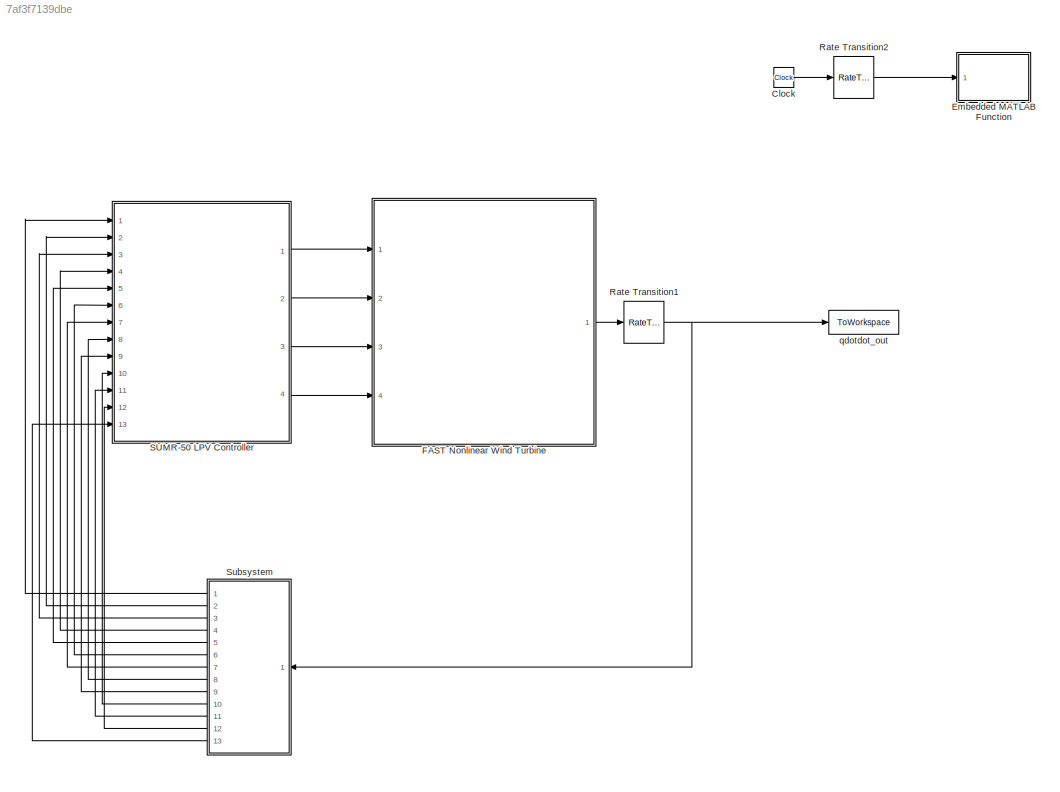
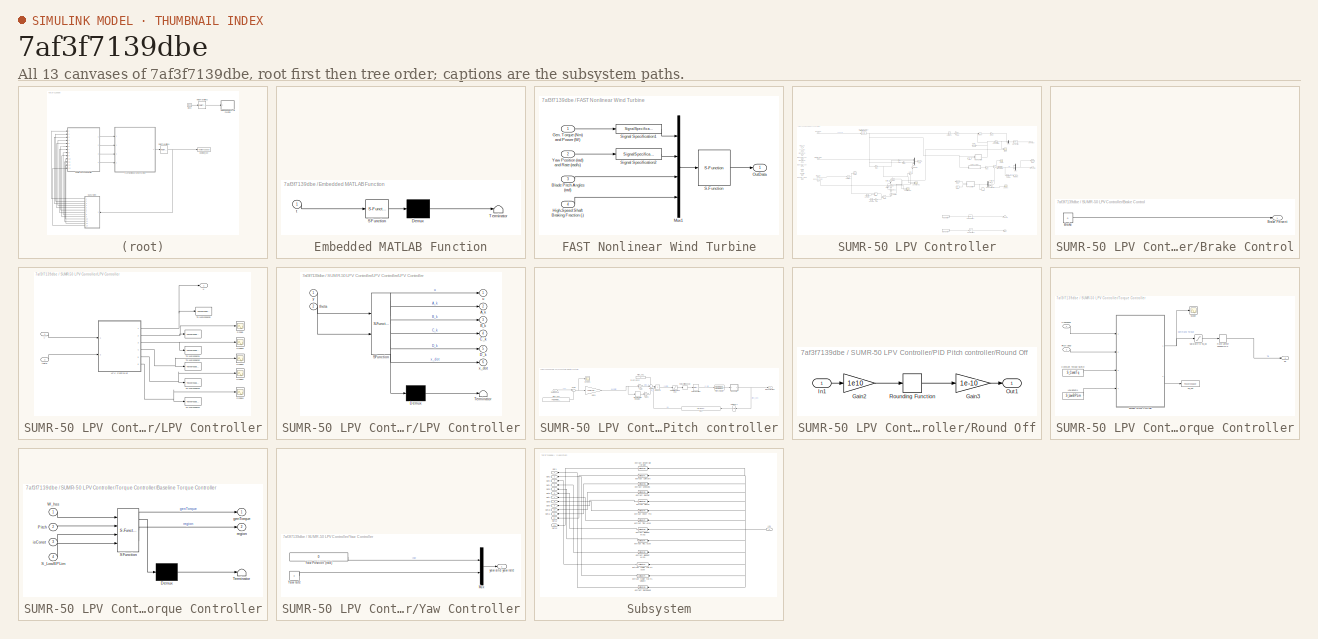
[diagram: thumbnail index - all 13 canvases of the model, root first then tree order]
MODEL slx_7af3f7139dbe
KIND model
CONFIG AbsTol = auto
CONFIG EnableMultiTasking = on
CONFIG FixedStep = .0125
CONFIG MaxStep = auto
CONFIG MinStep = auto
CONFIG RelTol = 1e-3
CONFIG SampleTimeConstraint = Unconstrained
CONFIG Solver = ode4
CONFIG SolverName = ode4
CONFIG StartTime = 0.0
CONFIG StopTime = TMax
BLOCK [Clock] Clock
BLOCK [SubSystem] Embedded MATLAB Function
  ErrorFcn = Stateflow.Translate.translate
  PermitHierarchicalResolution = ExplicitOnly
  Ports = [1]
  RequestExecContextInheritance = off
  SFBlockType = MATLAB Function
  TreatAsAtomicUnit = on
BLOCK [Demux] Embedded MATLAB Function/ Demux 
  Outputs = 1
  Ports = [1, 1]
BLOCK [S-Function] Embedded MATLAB Function/ SFunction 
  EnableBusSupport = on
  FunctionName = sf_sfun
  PortCounts = [1 1]
  Ports = [1, 1]
  SFcnIsStateOwnerBlock = off
  SFunctionDeploymentMode = off
  Tag = Stateflow S-Function LPVT_CollectivePitch_50 2
BLOCK [Terminator] Embedded MATLAB Function/ Terminator 
BLOCK [Inport] Embedded MATLAB Function/t
  IconDisplay = Port number
BLOCK [SubSystem] FAST Nonlinear Wind Turbine
  Ports = [4, 1]
  RequestExecContextInheritance = off
BLOCK [Inport] FAST Nonlinear Wind Turbine/Blade Pitch Angles (rad)
  IconDisplay = Port number
  Port = 3
BLOCK [Inport] FAST Nonlinear Wind Turbine/Gen. Torque (Nm) and Power (W)
  IconDisplay = Port number
BLOCK [Inport] FAST Nonlinear Wind Turbine/High-Speed Shaft Braking Fraction (-)
  IconDisplay = Port number
  Port = 4
BLOCK [Mux] FAST Nonlinear Wind Turbine/Mux1
  DisplayOption = bar
  Ports = [4, 1]
BLOCK [Outport] FAST Nonlinear Wind Turbine/OutData
  IconDisplay = Port number
BLOCK [S-Function] FAST Nonlinear Wind Turbine/S-Function
  EnableBusSupport = off
  FunctionName = FAST_SFunc
  Parameters = FAST_InputFileName, FA.TMax, 0
  Ports = [1, 1]
  SFcnIsStateOwnerBlock = off
  SFunctionDeploymentMode = off
BLOCK [SignalSpecification] FAST Nonlinear Wind Turbine/Signal Specification1
  Dimensions = 2
  OutDataTypeStr = double
  SignalType = real
BLOCK [SignalSpecification] FAST Nonlinear Wind Turbine/Signal Specification2
  Dimensions = 2
  OutDataTypeStr = double
  SignalType = real
BLOCK [Inport] FAST Nonlinear Wind Turbine/Yaw Position (rad) and Rate (rad//s)
  IconDisplay = Port number
  Port = 2
BLOCK [RateTransition] Rate Transition1
BLOCK [RateTransition] Rate Transition2
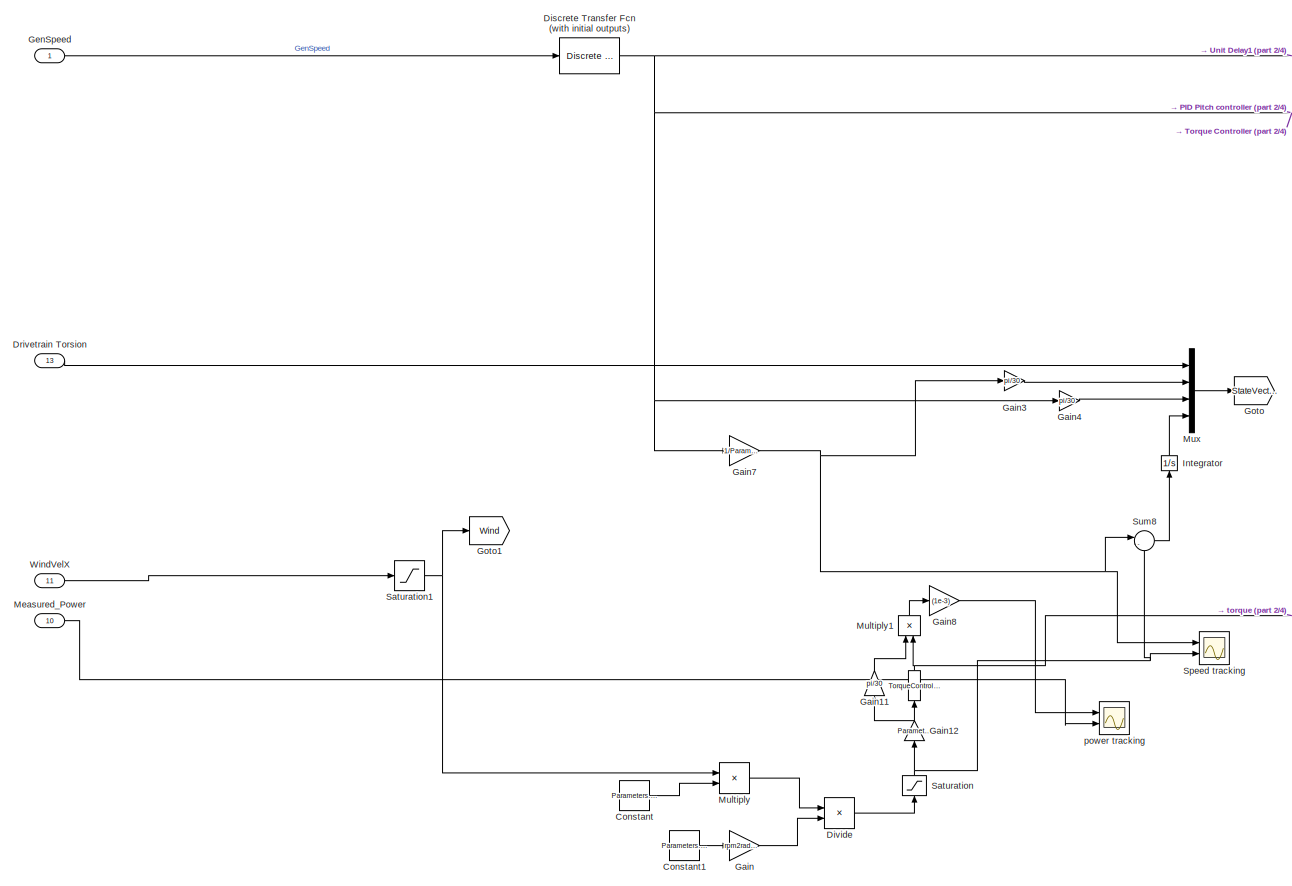
[diagram: SUMR-50 LPV Controller - part 1/4, middle left region]
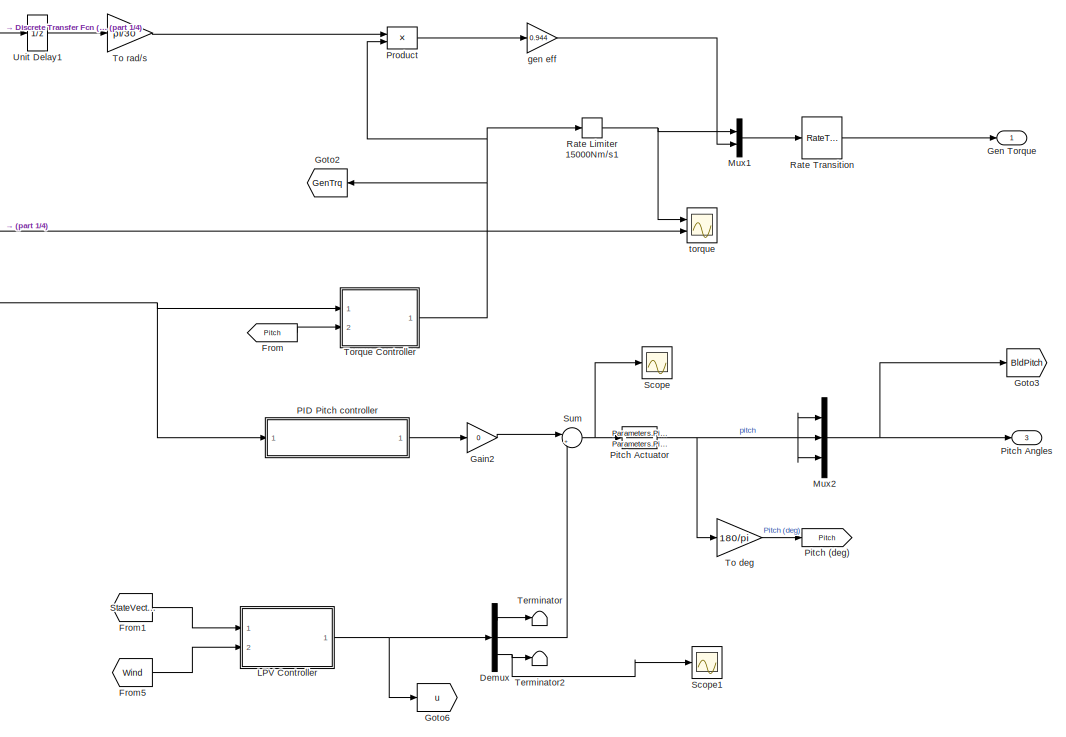
[diagram: SUMR-50 LPV Controller - part 2/4, top right region]
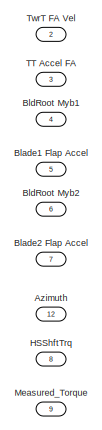
[diagram: SUMR-50 LPV Controller - part 3/4, middle left region]
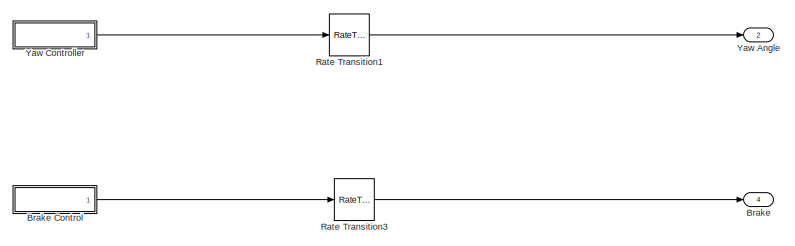
[diagram: SUMR-50 LPV Controller - part 4/4, bottom right region]
BLOCK [SubSystem] SUMR-50 LPV Controller
  Ports = [13, 4]
  RequestExecContextInheritance = off
BLOCK [Fcn] SUMR-50 LPV Controller/ 
  Expr = TorqueControlParams.k_opt*(u)^2
BLOCK [Inport] SUMR-50 LPV Controller/Azimuth
  IconDisplay = Port number
  Port = 12
BLOCK [Inport] SUMR-50 LPV Controller/Blade1 Flap Accel
  IconDisplay = Port number
  Port = 5
BLOCK [Inport] SUMR-50 LPV Controller/Blade2 Flap Accel
  IconDisplay = Port number
  Port = 7
BLOCK [Inport] SUMR-50 LPV Controller/BldRoot Myb1
  IconDisplay = Port number
  Port = 4
BLOCK [Inport] SUMR-50 LPV Controller/BldRoot Myb2
  IconDisplay = Port number
  Port = 6
BLOCK [Outport] SUMR-50 LPV Controller/Brake
  IconDisplay = Port number
  Port = 4
BLOCK [SubSystem] SUMR-50 LPV Controller/Brake Control
  Ports = [0, 1]
  RequestExecContextInheritance = off
BLOCK [Constant] SUMR-50 LPV Controller/Brake Control/Brake
  SampleTime = -1
  Value = 0
BLOCK [Outport] SUMR-50 LPV Controller/Brake Control/Brake Percent
  IconDisplay = Port number
BLOCK [Constant] SUMR-50 LPV Controller/Constant
  SampleTime = FA.DT
  Value = Parameters.Turbine.la_max
BLOCK [Constant] SUMR-50 LPV Controller/Constant1
  Value = Parameters.Turbine.R
BLOCK [Demux] SUMR-50 LPV Controller/Demux
  DisplayOption = bar
  Outputs = 3
  Ports = [1, 3]
BLOCK [Reference] SUMR-50 LPV Controller/Discrete Transfer Fcn (with initial outputs)  REF=simulink_extras/Additional
Discrete/Discrete
Transfer Fcn
(with initial outputs)
  Ports = [1, 1]
  SourceBlock = simulink_extras/Additional\nDiscrete/Discrete\nTransfer Fcn\n(with initial outputs)
  SourceProductBaseCode = SL
  SourceProductName = Simulink
  SourceType = Discrete Transfer Function with Initial Outputs
BLOCK [Product] SUMR-50 LPV Controller/Divide
  InputSameDT = off
  Inputs = */
  OutDataTypeStr = Inherit: Inherit via internal rule
  Ports = [2, 1]
  RndMeth = Floor
  SaturateOnIntegerOverflow = off
BLOCK [Inport] SUMR-50 LPV Controller/Drivetrain Torsion
  IconDisplay = Port number
  Port = 13
BLOCK [From] SUMR-50 LPV Controller/From
  GotoTag = Pitch
BLOCK [From] SUMR-50 LPV Controller/From1
  GotoTag = StateVector
BLOCK [From] SUMR-50 LPV Controller/From5
  GotoTag = Wind
BLOCK [Gain] SUMR-50 LPV Controller/Gain
  Gain = rpm2radps(1)
  OutDataTypeStr = Inherit: Inherit via internal rule
  ParamDataTypeStr = Inherit: Inherit via internal rule
  SaturateOnIntegerOverflow = off
BLOCK [Gain] SUMR-50 LPV Controller/Gain11
  Gain = pi/30
  OutDataTypeStr = Inherit: Inherit via internal rule
  ParamDataTypeStr = Inherit: Inherit via internal rule
  SaturateOnIntegerOverflow = off
BLOCK [Gain] SUMR-50 LPV Controller/Gain12
  Gain = Parameters.Turbine.G
  OutDataTypeStr = Inherit: Inherit via internal rule
  ParamDataTypeStr = Inherit: Inherit via internal rule
  SaturateOnIntegerOverflow = off
BLOCK [Gain] SUMR-50 LPV Controller/Gain2
  Gain = 0
  OutDataTypeStr = Inherit: Inherit via internal rule
  ParamDataTypeStr = Inherit: Inherit via internal rule
  SaturateOnIntegerOverflow = off
BLOCK [Gain] SUMR-50 LPV Controller/Gain3
  Gain = pi/30
  OutDataTypeStr = Inherit: Inherit via internal rule
  ParamDataTypeStr = Inherit: Inherit via internal rule
  SaturateOnIntegerOverflow = off
BLOCK [Gain] SUMR-50 LPV Controller/Gain4
  Gain = pi/30
  OutDataTypeStr = Inherit: Inherit via internal rule
  ParamDataTypeStr = Inherit: Inherit via internal rule
  SaturateOnIntegerOverflow = off
BLOCK [Gain] SUMR-50 LPV Controller/Gain7
  Gain = 1/Parameters.Turbine.G
  OutDataTypeStr = Inherit: Inherit via internal rule
  ParamDataTypeStr = Inherit: Inherit via internal rule
  SaturateOnIntegerOverflow = off
BLOCK [Gain] SUMR-50 LPV Controller/Gain8
  Gain = (1e-3)
  OutDataTypeStr = Inherit: Inherit via internal rule
  ParamDataTypeStr = Inherit: Inherit via internal rule
  SaturateOnIntegerOverflow = off
BLOCK [Outport] SUMR-50 LPV Controller/Gen Torque
  IconDisplay = Port number
BLOCK [Inport] SUMR-50 LPV Controller/GenSpeed
  IconDisplay = Port number
BLOCK [Goto] SUMR-50 LPV Controller/Goto
  GotoTag = StateVector
BLOCK [Goto] SUMR-50 LPV Controller/Goto1
  GotoTag = Wind
BLOCK [Goto] SUMR-50 LPV Controller/Goto2
  GotoTag = GenTrq
BLOCK [Goto] SUMR-50 LPV Controller/Goto3
  GotoTag = BldPitch
BLOCK [Goto] SUMR-50 LPV Controller/Goto6
  GotoTag = u
BLOCK [Inport] SUMR-50 LPV Controller/HSShftTrq
  IconDisplay = Port number
  Port = 8
BLOCK [Integrator] SUMR-50 LPV Controller/Integrator
  Ports = [1, 1]
BLOCK [SubSystem] SUMR-50 LPV Controller/LPV Controller
  MinAlgLoopOccurrences = on
  Ports = [2, 1]
  RequestExecContextInheritance = off
  TreatAsAtomicUnit = on
  TreatAsGroupedWhenPropagatingVariantConditions = off
BLOCK [ToWorkspace] SUMR-50 LPV Controller/LPV Controller/ 
  Decimation = 3
  FixptAsFi = on
  MaxDataPoints = inf
  Ports = [1]
  SampleTime = -1
  Save2DSignal = 3-D array (concatenate along third dimension)
  SaveFormat = Structure With Time
  VariableName = A_k
BLOCK [SubSystem] SUMR-50 LPV Controller/LPV Controller/LPV Controller
  ErrorFcn = Stateflow.Translate.translate
  MinAlgLoopOccurrences = on
  PermitHierarchicalResolution = ExplicitOnly
  Ports = [2, 6]
  RequestExecContextInheritance = off
  SFBlockType = MATLAB Function
  SystemSampleTime = FA.DT
  TreatAsAtomicUnit = on
  TreatAsGroupedWhenPropagatingVariantConditions = off
BLOCK [Demux] SUMR-50 LPV Controller/LPV Controller/LPV Controller/ Demux 
  Outputs = 1
  Ports = [1, 1]
BLOCK [S-Function] SUMR-50 LPV Controller/LPV Controller/LPV Controller/ SFunction 
  EnableBusSupport = on
  FunctionName = sf_sfun
  PortCounts = [2 7]
  Ports = [2, 7]
  SFcnIsStateOwnerBlock = off
  SFunctionDeploymentMode = off
  Tag = Stateflow S-Function LPVT_CollectivePitch_50 1
BLOCK [Terminator] SUMR-50 LPV Controller/LPV Controller/LPV Controller/ Terminator 
BLOCK [Outport] SUMR-50 LPV Controller/LPV Controller/LPV Controller/A_k
  IconDisplay = Port number
  Port = 2
BLOCK [Outport] SUMR-50 LPV Controller/LPV Controller/LPV Controller/B_k
  IconDisplay = Port number
  Port = 3
BLOCK [Outport] SUMR-50 LPV Controller/LPV Controller/LPV Controller/C_k
  IconDisplay = Port number
  Port = 4
BLOCK [Outport] SUMR-50 LPV Controller/LPV Controller/LPV Controller/D_k
  IconDisplay = Port number
  Port = 5
BLOCK [Inport] SUMR-50 LPV Controller/LPV Controller/LPV Controller/theta
  IconDisplay = Port number
  Port = 2
BLOCK [Outport] SUMR-50 LPV Controller/LPV Controller/LPV Controller/u
  IconDisplay = Port number
BLOCK [Outport] SUMR-50 LPV Controller/LPV Controller/LPV Controller/x_dot
  IconDisplay = Port number
  Port = 6
BLOCK [Inport] SUMR-50 LPV Controller/LPV Controller/LPV Controller/y
  IconDisplay = Port number
BLOCK [Scope] SUMR-50 LPV Controller/LPV Controller/Scope
  Floating = off
  NumInputPorts = 1
  Ports = [1]
  ScopeSpecificationString = Simulink.scopes.TimeScopeBlockCfg('CurrentConfiguration', extmgr.ConfigurationSet(extmgr.Configuration('Core','General UI',true),extmgr.Configuration('Core','Source UI',true),extmgr.Configuration('Sources','WiredSimulink',true,'DataLoggingVariableName','ScopeData2'),extmgr.Configuration('Visuals','Time Domain',true,'SerializedDisplays',{struct('MinYLimReal','-0.00017','MaxYLimReal','0.00161','YLab...<+1505ch>
BLOCK [Scope] SUMR-50 LPV Controller/LPV Controller/Scope1
  Floating = off
  NumInputPorts = 1
  Ports = [1]
  ScopeSpecificationString = Simulink.scopes.TimeScopeBlockCfg('CurrentConfiguration', extmgr.ConfigurationSet(extmgr.Configuration('Core','General UI',true),extmgr.Configuration('Core','Source UI',true),extmgr.Configuration('Sources','WiredSimulink',true,'DataLoggingVariableName','ScopeData3'),extmgr.Configuration('Visuals','Time Domain',true,'SerializedDisplays',{struct('MinYLimReal','-0.00334','MaxYLimReal','0.0016','YLabe...<+3162ch>
BLOCK [Scope] SUMR-50 LPV Controller/LPV Controller/Scope2
  Floating = off
  NumInputPorts = 1
  Ports = [1]
  ScopeSpecificationString = Simulink.scopes.TimeScopeBlockCfg('CurrentConfiguration', extmgr.ConfigurationSet(extmgr.Configuration('Core','General UI',true),extmgr.Configuration('Core','Source UI',true),extmgr.Configuration('Sources','WiredSimulink',true,'DataLoggingVariableName','ScopeData4'),extmgr.Configuration('Visuals','Time Domain',true,'SerializedDisplays',{struct('MinYLimReal','-0.00978','MaxYLimReal','0.08806','YLab...<+1531ch>
BLOCK [Scope] SUMR-50 LPV Controller/LPV Controller/Scope3
  Floating = off
  NumInputPorts = 1
  Ports = [1]
  ScopeSpecificationString = Simulink.scopes.TimeScopeBlockCfg('CurrentConfiguration', extmgr.ConfigurationSet(extmgr.Configuration('Core','General UI',true),extmgr.Configuration('Core','Source UI',true),extmgr.Configuration('Sources','WiredSimulink',true,'DataLoggingVariableName','ScopeData5'),extmgr.Configuration('Visuals','Time Domain',true,'SerializedDisplays',{struct('MinYLimReal','-1.43606','MaxYLimReal','2.6978','YLabe...<+1573ch>
BLOCK [Scope] SUMR-50 LPV Controller/LPV Controller/Scope4
  Floating = off
  NumInputPorts = 1
  Ports = [1]
  ScopeSpecificationString = Simulink.scopes.TimeScopeBlockCfg('CurrentConfiguration', extmgr.ConfigurationSet(extmgr.Configuration('Core','General UI',true),extmgr.Configuration('Core','Source UI',true),extmgr.Configuration('Sources','WiredSimulink',true,'DataLoggingVariableName','ScopeData4'),extmgr.Configuration('Visuals','Time Domain',true,'SerializedDisplays',{struct('MinYLimReal','-35.58775','MaxYLimReal','312.5564','YL...<+1449ch>
BLOCK [ToWorkspace] SUMR-50 LPV Controller/LPV Controller/To Workspace1
  Decimation = 3
  FixptAsFi = on
  MaxDataPoints = inf
  Ports = [1]
  SampleTime = -1
  Save2DSignal = 3-D array (concatenate along third dimension)
  SaveFormat = Structure With Time
  VariableName = B_k
BLOCK [ToWorkspace] SUMR-50 LPV Controller/LPV Controller/To Workspace2
  Decimation = 3
  FixptAsFi = on
  MaxDataPoints = inf
  Ports = [1]
  SampleTime = -1
  Save2DSignal = 3-D array (concatenate along third dimension)
  SaveFormat = Structure With Time
  VariableName = C_k
BLOCK [ToWorkspace] SUMR-50 LPV Controller/LPV Controller/To Workspace3
  Decimation = 3
  FixptAsFi = on
  MaxDataPoints = inf
  Ports = [1]
  SampleTime = -1
  Save2DSignal = 3-D array (concatenate along third dimension)
  SaveFormat = Structure With Time
  VariableName = D_k
BLOCK [ToWorkspace] SUMR-50 LPV Controller/LPV Controller/To Workspace4
  Decimation = 3
  FixptAsFi = on
  MaxDataPoints = inf
  Ports = [1]
  SampleTime = -1
  Save2DSignal = 3-D array (concatenate along third dimension)
  SaveFormat = Structure With Time
  VariableName = x_k1
BLOCK [ToWorkspace] SUMR-50 LPV Controller/LPV Controller/To Workspace5
  Decimation = 3
  FixptAsFi = on
  MaxDataPoints = inf
  Ports = [1]
  SampleTime = -1
  Save2DSignal = 3-D array (concatenate along third dimension)
  SaveFormat = Structure With Time
  VariableName = u
BLOCK [Inport] SUMR-50 LPV Controller/LPV Controller/theta
  IconDisplay = Port number
  Port = 2
BLOCK [Outport] SUMR-50 LPV Controller/LPV Controller/u
  IconDisplay = Port number
BLOCK [Inport] SUMR-50 LPV Controller/LPV Controller/y
  IconDisplay = Port number
BLOCK [Inport] SUMR-50 LPV Controller/Measured_Power
  IconDisplay = Port number
  Port = 10
BLOCK [Inport] SUMR-50 LPV Controller/Measured_Torque
  IconDisplay = Port number
  Port = 9
BLOCK [Product] SUMR-50 LPV Controller/Multiply
  InputSameDT = off
  OutDataTypeStr = Inherit: Inherit via internal rule
  Ports = [2, 1]
  RndMeth = Floor
  SaturateOnIntegerOverflow = off
BLOCK [Product] SUMR-50 LPV Controller/Multiply1
  InputSameDT = off
  OutDataTypeStr = Inherit: Inherit via internal rule
  Ports = [2, 1]
  RndMeth = Floor
  SaturateOnIntegerOverflow = off
BLOCK [Mux] SUMR-50 LPV Controller/Mux
  DisplayOption = bar
  Ports = [4, 1]
BLOCK [Mux] SUMR-50 LPV Controller/Mux1
  DisplayOption = bar
  Inputs = 2
  Ports = [2, 1]
BLOCK [Mux] SUMR-50 LPV Controller/Mux2
  DisplayOption = bar
  Inputs = 3
  Ports = [3, 1]
BLOCK [SubSystem] SUMR-50 LPV Controller/PID Pitch controller
  MinAlgLoopOccurrences = on
  Ports = [1, 1]
  RequestExecContextInheritance = off
BLOCK [Outport] SUMR-50 LPV Controller/PID Pitch controller/Blade Pitch (rad)
  IconDisplay = Port number
BLOCK [DiscreteIntegrator] SUMR-50 LPV Controller/PID Pitch controller/Discrete-Time Integrator
  ICPrevOutput = DiscIntNeverNeededParam
  ICPrevScaledInput = DiscIntNeverNeededParam
  InitialCondition = deg2rad(Parameters.Turbine.fine_pitch)/(PitchControlParams.Ki_0)/(1./(1.+deg2rad(Parameters.Turbine.fine_pitch)/PitchControlParams.theta_k))
  IntegratorMethod = Integration: Backward Euler
  LimitOutput = on
  LowerSaturationLimit = deg2rad(Parameters.Turbine.fine_pitch)/(PitchControlParams.Ki_0)/(1./(1.+deg2rad(Parameters.Turbine.fine_pitch)/PitchControlParams.theta_k))
  Ports = [1, 1]
  SampleTime = Control.DT
  UpperSaturationLimit = 5*1.570796/(PitchControlParams.Ki_0)/(1./(1.+1.570796/PitchControlParams.theta_k))
  gainval = 1
BLOCK [Fcn] SUMR-50 LPV Controller/PID Pitch controller/GK1
  Expr = 1./(1.+(u*180/pi-Parameters.Turbine.fine_pitch)/Parameters.Turbine.theta_k)
BLOCK [Gain] SUMR-50 LPV Controller/PID Pitch controller/Gain
  Gain = PitchControlParams.Kp_0
  OutDataTypeStr = Inherit: Inherit via internal rule
  ParamDataTypeStr = Inherit: Inherit via internal rule
  SaturateOnIntegerOverflow = off
BLOCK [Gain] SUMR-50 LPV Controller/PID Pitch controller/Gain1
  Gain = PitchControlParams.Ki_0
  OutDataTypeStr = Inherit: Inherit via internal rule
  ParamDataTypeStr = Inherit: Inherit via internal rule
  SaturateOnIntegerOverflow = off
BLOCK [Gain] SUMR-50 LPV Controller/PID Pitch controller/Gain4
  Gain = rpm2radps(1)
  OutDataTypeStr = Inherit: Inherit via internal rule
  ParamDataTypeStr = Inherit: Inherit via internal rule
  SaturateOnIntegerOverflow = off
BLOCK [TransferFcn] SUMR-50 LPV Controller/PID Pitch controller/Pitch Actuator
  Denominator = Parameters.PitchActuator.TF_den
  Numerator = Parameters.PitchActuator.TF_num
BLOCK [Constant] SUMR-50 LPV Controller/PID Pitch controller/Pitch_op1
  SampleTime = Control.DT
  Value = 0
BLOCK [Constant] SUMR-50 LPV Controller/PID Pitch controller/Pitch_op2
  SampleTime = Control.DT
  Value = Parameters.Turbine.wg_rated
BLOCK [Product] SUMR-50 LPV Controller/PID Pitch controller/Product1
  InputSameDT = off
  OutDataTypeStr = Inherit: Inherit via internal rule
  Ports = [2, 1]
  SaturateOnIntegerOverflow = off
BLOCK [RateLimiter] SUMR-50 LPV Controller/PID Pitch controller/Rate Limiter 8deg//s
  FallingSlewLimit = -18*pi/180
  InitialCondition = deg2rad(0)
  RisingSlewLimit = 18*pi/180
  SampleTimeMode = inherited
BLOCK [RateTransition] SUMR-50 LPV Controller/PID Pitch controller/Rate Transition
  Commented = through
BLOCK [Inport] SUMR-50 LPV Controller/PID Pitch controller/Rotor Speed
  IconDisplay = Port number
BLOCK [SubSystem] SUMR-50 LPV Controller/PID Pitch controller/Round Off
  Ports = [1, 1]
  RequestExecContextInheritance = off
BLOCK [Gain] SUMR-50 LPV Controller/PID Pitch controller/Round Off/Gain2
  Gain = 1e10
  OutDataTypeStr = Inherit: Inherit via internal rule
  ParamDataTypeStr = Inherit: Inherit via internal rule
  SaturateOnIntegerOverflow = off
BLOCK [Gain] SUMR-50 LPV Controller/PID Pitch controller/Round Off/Gain3
  Gain = 1e-10
  OutDataTypeStr = Inherit: Inherit via internal rule
  ParamDataTypeStr = Inherit: Inherit via internal rule
  SaturateOnIntegerOverflow = off
BLOCK [Inport] SUMR-50 LPV Controller/PID Pitch controller/Round Off/In1
  IconDisplay = Port number
BLOCK [Outport] SUMR-50 LPV Controller/PID Pitch controller/Round Off/Out1
  IconDisplay = Port number
BLOCK [Rounding] SUMR-50 LPV Controller/PID Pitch controller/Round Off/Rounding Function
  Operator = round
BLOCK [Saturate] SUMR-50 LPV Controller/PID Pitch controller/Saturation 0 to 90 deg
  InputPortMap = u0
  LowerLimit = deg2rad(Parameters.Turbine.fine_pitch)
  Ports = [1, 1]
  UpperLimit = 90*pi/180
BLOCK [Scope] SUMR-50 LPV Controller/PID Pitch controller/Scope1
  Floating = off
  NumInputPorts = 1
  Ports = [1]
  ScopeSpecificationString = Simulink.scopes.TimeScopeBlockCfg('CurrentConfiguration', extmgr.ConfigurationSet(extmgr.Configuration('Core','General UI',true),extmgr.Configuration('Core','Source UI',true),extmgr.Configuration('Sources','WiredSimulink',true,'DataLoggingVariableName','ScopeData2'),extmgr.Configuration('Visuals','Time Domain',true,'SerializedDisplays',{struct('MinYLimReal','-848.99604','MaxYLimReal','-522.22659',...<+1418ch>
BLOCK [Sum] SUMR-50 LPV Controller/PID Pitch controller/Sum1
  IconShape = round
  InputSameDT = off
  Inputs = +++
  OutDataTypeStr = Inherit: Inherit via internal rule
  Ports = [3, 1]
  SaturateOnIntegerOverflow = off
BLOCK [Sum] SUMR-50 LPV Controller/PID Pitch controller/Sum5
  IconShape = round
  Inputs = |+-
  Ports = [2, 1]
BLOCK [UnitDelay] SUMR-50 LPV Controller/PID Pitch controller/Unit Delay1
  InitialCondition = Parameters.Turbine.IC.Wg
  SampleTime = Control.DT
BLOCK [Goto] SUMR-50 LPV Controller/Pitch (deg)
  GotoTag = Pitch
BLOCK [TransferFcn] SUMR-50 LPV Controller/Pitch Actuator
  Denominator = Parameters.PitchActuator.TF_den
  Numerator = Parameters.PitchActuator.TF_num
BLOCK [Outport] SUMR-50 LPV Controller/Pitch Angles
  IconDisplay = Port number
  Port = 3
BLOCK [Product] SUMR-50 LPV Controller/Product
  InputSameDT = off
  OutDataTypeStr = Inherit: Inherit via internal rule
  Ports = [2, 1]
  SaturateOnIntegerOverflow = off
BLOCK [RateLimiter] SUMR-50 LPV Controller/Rate Limiter 15000Nm//s1
  FallingSlewLimit = -15000
  RisingSlewLimit = 15000
  SampleTimeMode = inherited
BLOCK [RateTransition] SUMR-50 LPV Controller/Rate Transition
  InitialCondition = Parameters.Turbine.IC.Tg
BLOCK [RateTransition] SUMR-50 LPV Controller/Rate Transition1
BLOCK [RateTransition] SUMR-50 LPV Controller/Rate Transition3
BLOCK [Saturate] SUMR-50 LPV Controller/Saturation
  InputPortMap = u0
  LowerLimit = 0
  Ports = [1, 1]
  UpperLimit = Parameters.Turbine.wr_rated
BLOCK [Saturate] SUMR-50 LPV Controller/Saturation1
  InputPortMap = u0
  LowerLimit = 0
  Ports = [1, 1]
  UpperLimit = 25
BLOCK [Scope] SUMR-50 LPV Controller/Scope
  Floating = off
  NumInputPorts = 1
  Ports = [1]
  ScopeSpecificationString = Simulink.scopes.TimeScopeBlockCfg('CurrentConfiguration', extmgr.ConfigurationSet(extmgr.Configuration('Core','General UI',true),extmgr.Configuration('Core','Source UI',true),extmgr.Configuration('Sources','WiredSimulink',true,'DataLoggingVariableName','ScopeData1'),extmgr.Configuration('Visuals','Time Domain',true,'SerializedDisplays',{struct('MinYLimReal','-0.38901','MaxYLimReal','0.25678','YLab...<+1431ch>
BLOCK [Scope] SUMR-50 LPV Controller/Scope1
  Floating = off
  NumInputPorts = 1
  Ports = [1]
  ScopeSpecificationString = Simulink.scopes.TimeScopeBlockCfg('CurrentConfiguration', extmgr.ConfigurationSet(extmgr.Configuration('Core','General UI',true),extmgr.Configuration('Core','Source UI',true),extmgr.Configuration('Sources','WiredSimulink',true,'DataLoggingVariableName','ScopeData1'),extmgr.Configuration('Visuals','Time Domain',true,'SerializedDisplays',{struct('MinYLimReal','-9.8149','MaxYLimReal','-6.81129','YLab...<+1407ch>
BLOCK [Scope] SUMR-50 LPV Controller/Speed tracking
  Floating = off
  NumInputPorts = 2
  Ports = [2]
  ScopeSpecificationString = Simulink.scopes.TimeScopeBlockCfg('CurrentConfiguration', extmgr.ConfigurationSet(extmgr.Configuration('Core','General UI',true),extmgr.Configuration('Core','Source UI',true),extmgr.Configuration('Sources','WiredSimulink',true,'DataLoggingVariableName','ScopeData1'),extmgr.Configuration('Visuals','Time Domain',true,'SerializedDisplays',{struct('MinYLimReal','-116.47488','MaxYLimReal','1088.73293',...<+1478ch>
BLOCK [Sum] SUMR-50 LPV Controller/Sum
  IconShape = round
  InputSameDT = off
  Inputs = |++
  OutDataTypeStr = Inherit: Inherit via internal rule
  Ports = [2, 1]
  SaturateOnIntegerOverflow = off
BLOCK [Sum] SUMR-50 LPV Controller/Sum8
  IconShape = round
  InputSameDT = off
  Inputs = |-+
  OutDataTypeStr = Inherit: Inherit via internal rule
  Ports = [2, 1]
  SaturateOnIntegerOverflow = off
BLOCK [Inport] SUMR-50 LPV Controller/TT Accel FA
  IconDisplay = Port number
  Port = 3
BLOCK [Terminator] SUMR-50 LPV Controller/Terminator
BLOCK [Terminator] SUMR-50 LPV Controller/Terminator2
BLOCK [Gain] SUMR-50 LPV Controller/To deg
  Gain = 180/pi
  OutDataTypeStr = Inherit: Inherit via internal rule
  ParamDataTypeStr = Inherit: Inherit via internal rule
  SaturateOnIntegerOverflow = off
BLOCK [Gain] SUMR-50 LPV Controller/To rad//s
  Gain = pi/30
  OutDataTypeStr = Inherit: Inherit via internal rule
  ParamDataTypeStr = Inherit: Inherit via internal rule
  SaturateOnIntegerOverflow = off
BLOCK [SubSystem] SUMR-50 LPV Controller/Torque Controller
  Ports = [2, 1]
  RequestExecContextInheritance = off
BLOCK [SubSystem] SUMR-50 LPV Controller/Torque Controller/Baseline Torque Controller
  ErrorFcn = Stateflow.Translate.translate
  PermitHierarchicalResolution = ExplicitOnly
  Ports = [4, 2]
  RequestExecContextInheritance = off
  SFBlockType = MATLAB Function
  TreatAsAtomicUnit = on
BLOCK [Demux] SUMR-50 LPV Controller/Torque Controller/Baseline Torque Controller/ Demux 
  Outputs = 1
  Ports = [1, 1]
BLOCK [S-Function] SUMR-50 LPV Controller/Torque Controller/Baseline Torque Controller/ SFunction 
  EnableBusSupport = on
  FunctionName = sf_sfun
  Parameters = TorqueControlParams
  PortCounts = [4 3]
  Ports = [4, 3]
  SFcnIsStateOwnerBlock = off
  SFunctionDeploymentMode = off
  Tag = Stateflow S-Function LPVT_CollectivePitch_50 3
BLOCK [Terminator] SUMR-50 LPV Controller/Torque Controller/Baseline Torque Controller/ Terminator 
BLOCK [Inport] SUMR-50 LPV Controller/Torque Controller/Baseline Torque Controller/Pitch
  IconDisplay = Port number
  Port = 2
BLOCK [Inport] SUMR-50 LPV Controller/Torque Controller/Baseline Torque Controller/S_LowBPLim
  IconDisplay = Port number
  Port = 4
BLOCK [Inport] SUMR-50 LPV Controller/Torque Controller/Baseline Torque Controller/W_hss
  IconDisplay = Port number
BLOCK [Outport] SUMR-50 LPV Controller/Torque Controller/Baseline Torque Controller/genTorque
  IconDisplay = Port number
BLOCK [Inport] SUMR-50 LPV Controller/Torque Controller/Baseline Torque Controller/isConst
  IconDisplay = Port number
  Port = 3
BLOCK [Outport] SUMR-50 LPV Controller/Torque Controller/Baseline Torque Controller/region
  IconDisplay = Port number
  Port = 2
BLOCK [Constant] SUMR-50 LPV Controller/Torque Controller/Constant Torque Switch
  SampleTime = Control.DT
  Value = S_ConstTq
BLOCK [Inport] SUMR-50 LPV Controller/Torque Controller/HSSspeed
  IconDisplay = Port number
BLOCK [Constant] SUMR-50 LPV Controller/Torque Controller/LowBPLim1
  SampleTime = Control.DT
  Value = S_LowBPLim
BLOCK [Inport] SUMR-50 LPV Controller/Torque Controller/Pitch (deg)
  IconDisplay = Port number
  Port = 2
BLOCK [RateLimiter] SUMR-50 LPV Controller/Torque Controller/Rate Limiter 15000Nm//s
  FallingSlewLimit = -15000
  RisingSlewLimit = 15000
  SampleTimeMode = inherited
BLOCK [Saturate] SUMR-50 LPV Controller/Torque Controller/Saturate to Tg_op
  InputPortMap = u0
  LowerLimit = 0
  Ports = [1, 1]
  UpperLimit = TorqueControlParams.T_rated
BLOCK [Scope] SUMR-50 LPV Controller/Torque Controller/Scope
  Floating = off
  NumInputPorts = 1
  Ports = [1]
  ScopeSpecificationString = C++SS(StrPVP('SaveName','ScopeData1'),StrPVP('LimitDataPoints','on'),StrPVP('DataFormat','Array'),StrPVP('Decimation','1'),StrPVP('BlockParamSampleInput','off'))
BLOCK [Outport] SUMR-50 LPV Controller/Torque Controller/Tg
  IconDisplay = Port number
BLOCK [ToWorkspace] SUMR-50 LPV Controller/Torque Controller/Tg_out
  MaxDataPoints = Inf
  Ports = [1]
  SampleTime = -1
  VariableName = Out_Region1
BLOCK [Inport] SUMR-50 LPV Controller/TwrT FA Vel
  IconDisplay = Port number
  Port = 2
BLOCK [UnitDelay] SUMR-50 LPV Controller/Unit Delay1
  InitialCondition = Parameters.Turbine.IC.Wg
  SampleTime = FA.DT
BLOCK [Inport] SUMR-50 LPV Controller/WindVelX
  IconDisplay = Port number
  Port = 11
BLOCK [Outport] SUMR-50 LPV Controller/Yaw Angle
  IconDisplay = Port number
  Port = 2
BLOCK [SubSystem] SUMR-50 LPV Controller/Yaw Controller
  Ports = [0, 1]
  RequestExecContextInheritance = off
BLOCK [Mux] SUMR-50 LPV Controller/Yaw Controller/Mux
  DisplayOption = bar
  Inputs = 2
  Ports = [2, 1]
BLOCK [Constant] SUMR-50 LPV Controller/Yaw Controller/Yaw Position (rad)
  SampleTime = -1
  Value = 0
BLOCK [Constant] SUMR-50 LPV Controller/Yaw Controller/Yaw rate
  SampleTime = -1
  Value = 0
BLOCK [Outport] SUMR-50 LPV Controller/Yaw Controller/yaw and yaw rate
  IconDisplay = Port number
BLOCK [Gain] SUMR-50 LPV Controller/gen eff
  Gain = 0.944
  OutDataTypeStr = Inherit: Inherit via internal rule
  ParamDataTypeStr = Inherit: Inherit via internal rule
  SaturateOnIntegerOverflow = off
BLOCK [Scope] SUMR-50 LPV Controller/power tracking
  Floating = off
  NumInputPorts = 2
  Ports = [2]
  ScopeSpecificationString = Simulink.scopes.TimeScopeBlockCfg('CurrentConfiguration', extmgr.ConfigurationSet(extmgr.Configuration('Core','General UI',true),extmgr.Configuration('Core','Source UI',true),extmgr.Configuration('Sources','WiredSimulink',true,'DataLoggingVariableName','ScopeData1'),extmgr.Configuration('Visuals','Time Domain',true,'SerializedDisplays',{struct('MinYLimReal','-96119.97559','MaxYLimReal','282033.608...<+1494ch>
BLOCK [Scope] SUMR-50 LPV Controller/torque
  Floating = off
  NumInputPorts = 2
  Ports = [2]
  ScopeSpecificationString = Simulink.scopes.TimeScopeBlockCfg('CurrentConfiguration', extmgr.ConfigurationSet(extmgr.Configuration('Core','General UI',true),extmgr.Configuration('Core','Source UI',true),extmgr.Configuration('Sources','WiredSimulink',true,'DataLoggingVariableName','ScopeData2'),extmgr.Configuration('Visuals','Time Domain',true,'SerializedDisplays',{struct('MinYLimReal','-100681.25356','MaxYLimReal','908006.28...<+1507ch>
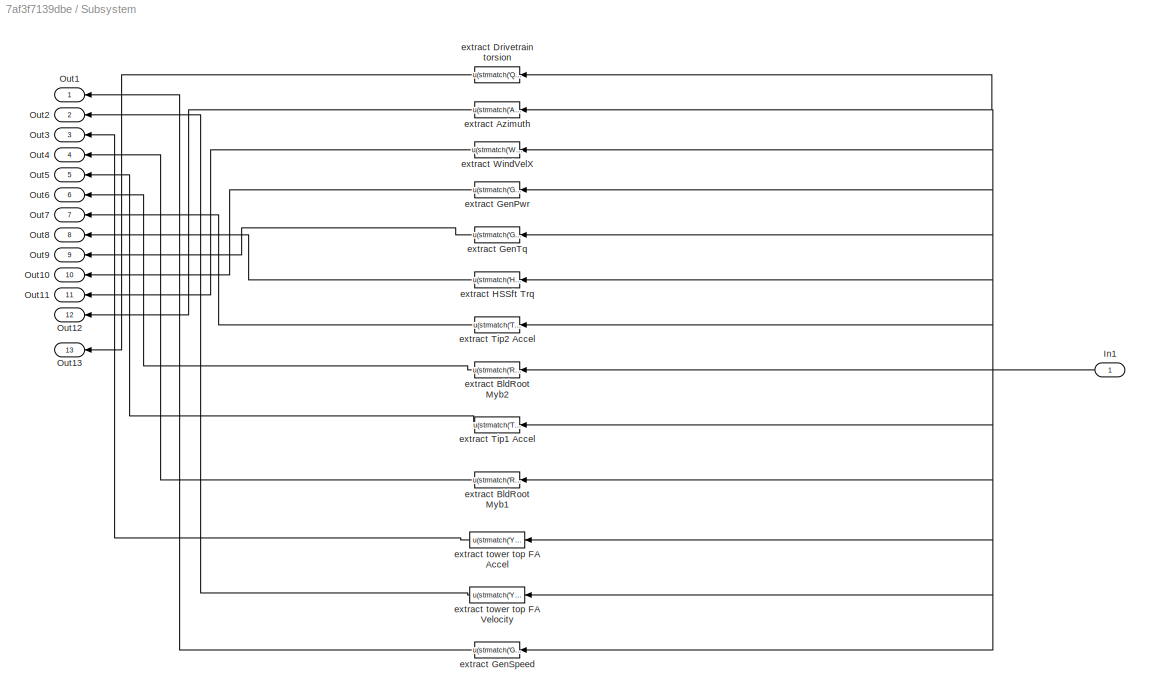
BLOCK [SubSystem] Subsystem
  Ports = [1, 13]
  RequestExecContextInheritance = off
BLOCK [Inport] Subsystem/In1
  IconDisplay = Port number
BLOCK [Outport] Subsystem/Out1
  IconDisplay = Port number
BLOCK [Outport] Subsystem/Out10
  IconDisplay = Port number
  Port = 10
BLOCK [Outport] Subsystem/Out11
  IconDisplay = Port number
  Port = 11
BLOCK [Outport] Subsystem/Out12
  IconDisplay = Port number
  Port = 12
BLOCK [Outport] Subsystem/Out13
  IconDisplay = Port number
  Port = 13
BLOCK [Outport] Subsystem/Out2
  IconDisplay = Port number
  Port = 2
BLOCK [Outport] Subsystem/Out3
  IconDisplay = Port number
  Port = 3
BLOCK [Outport] Subsystem/Out4
  IconDisplay = Port number
  Port = 4
BLOCK [Outport] Subsystem/Out5
  IconDisplay = Port number
  Port = 5
BLOCK [Outport] Subsystem/Out6
  IconDisplay = Port number
  Port = 6
BLOCK [Outport] Subsystem/Out7
  IconDisplay = Port number
  Port = 7
BLOCK [Outport] Subsystem/Out8
  IconDisplay = Port number
  Port = 8
BLOCK [Outport] Subsystem/Out9
  IconDisplay = Port number
  Port = 9
BLOCK [Fcn] Subsystem/extract Azimuth
  Expr = u(strmatch('Azimuth',OutList))
BLOCK [Fcn] Subsystem/extract BldRoot Myb1
  Expr = u(strmatch('RootMyb1',OutList))
BLOCK [Fcn] Subsystem/extract BldRoot Myb2
  Expr = u(strmatch('RootMyb2',OutList))
BLOCK [Fcn] Subsystem/extract Drivetrain torsion
  Expr = u(strmatch('Q_DrTr',OutList))
BLOCK [Fcn] Subsystem/extract GenPwr
  Expr = u(strmatch('GenPwr',OutList))
BLOCK [Fcn] Subsystem/extract GenSpeed
  Expr = u(strmatch('GenSpeed',OutList))
BLOCK [Fcn] Subsystem/extract GenTq
  Expr = u(strmatch('GenTq',OutList))
BLOCK [Fcn] Subsystem/extract HSSft Trq
  Expr = u(strmatch('HSShftTq',OutList))
BLOCK [Fcn] Subsystem/extract Tip1 Accel
  Expr = u(strmatch('TipALxb1',OutList))
BLOCK [Fcn] Subsystem/extract Tip2 Accel
  Expr = u(strmatch('TipALxb1',OutList))
BLOCK [Fcn] Subsystem/extract WindVelX
  Expr = u(strmatch('Wind1VelX',OutList))
BLOCK [Fcn] Subsystem/extract tower top FA Accel
  Expr = u(strmatch('YawBrRAyp',OutList))
BLOCK [Fcn] Subsystem/extract tower top FA Velocity
  Expr = u(strmatch('YawBrRVyp',OutList))
BLOCK [ToWorkspace] qdotdot_out
  MaxDataPoints = inf
  Ports = [1]
  SampleTime = -1
  SaveFormat = Structure With Time
  VariableName = OutData
ANNOTATION SUMR-50 LPV Controller/PID Pitch controller: fine pitch offset?
LINE Clock:1 -> Rate Transition2:1
LINE FAST Nonlinear Wind Turbine/Blade Pitch Angles (rad):1 -> FAST Nonlinear Wind Turbine/Mux1:3
LINE FAST Nonlinear Wind Turbine/Gen. Torque (Nm) and Power (W):1 -> FAST Nonlinear Wind Turbine/Signal Specification1:1
LINE FAST Nonlinear Wind Turbine/High-Speed Shaft Braking Fraction (-):1 -> FAST Nonlinear Wind Turbine/Mux1:4
LINE FAST Nonlinear Wind Turbine/Mux1:1 -> FAST Nonlinear Wind Turbine/S-Function:1
LINE FAST Nonlinear Wind Turbine/S-Function:1 -> FAST Nonlinear Wind Turbine/OutData:1
LINE FAST Nonlinear Wind Turbine/Signal Specification1:1 -> FAST Nonlinear Wind Turbine/Mux1:1
LINE FAST Nonlinear Wind Turbine/Signal Specification2:1 -> FAST Nonlinear Wind Turbine/Mux1:2
LINE FAST Nonlinear Wind Turbine/Yaw Position (rad) and Rate (rad//s):1 -> FAST Nonlinear Wind Turbine/Signal Specification2:1
LINE FAST Nonlinear Wind Turbine:1 -> Rate Transition1:1
NET Rate Transition1:1 -> Subsystem:1, qdotdot_out:1
LINE Rate Transition2:1 -> Embedded MATLAB Function:1
NET SUMR-50 LPV Controller/ :1 -> SUMR-50 LPV Controller/Multiply1:2, SUMR-50 LPV Controller/torque:2
LINE SUMR-50 LPV Controller/Brake Control/Brake:1 -> SUMR-50 LPV Controller/Brake Control/Brake Percent:1
LINE SUMR-50 LPV Controller/Brake Control:1 -> SUMR-50 LPV Controller/Rate Transition3:1
LINE SUMR-50 LPV Controller/Constant1:1 -> SUMR-50 LPV Controller/Gain:1
LINE SUMR-50 LPV Controller/Constant:1 -> SUMR-50 LPV Controller/Multiply:2
LINE SUMR-50 LPV Controller/Demux:1 -> SUMR-50 LPV Controller/Terminator:1
LINE SUMR-50 LPV Controller/Demux:2 -> SUMR-50 LPV Controller/Sum:2
NET SUMR-50 LPV Controller/Demux:3 -> SUMR-50 LPV Controller/Scope1:1, SUMR-50 LPV Controller/Terminator2:1
NET SUMR-50 LPV Controller/Discrete Transfer Fcn (with initial outputs):1 -> SUMR-50 LPV Controller/Gain4:1, SUMR-50 LPV Controller/Gain7:1, SUMR-50 LPV Controller/PID Pitch controller:1, SUMR-50 LPV Controller/Torque Controller:1, SUMR-50 LPV Controller/Unit Delay1:1
LINE SUMR-50 LPV Controller/Divide:1 -> SUMR-50 LPV Controller/Saturation:1
LINE SUMR-50 LPV Controller/Drivetrain Torsion:1 -> SUMR-50 LPV Controller/Mux:1
LINE SUMR-50 LPV Controller/From1:1 -> SUMR-50 LPV Controller/LPV Controller:1
LINE SUMR-50 LPV Controller/From5:1 -> SUMR-50 LPV Controller/LPV Controller:2
LINE SUMR-50 LPV Controller/From:1 -> SUMR-50 LPV Controller/Torque Controller:2
LINE SUMR-50 LPV Controller/Gain11:1 -> SUMR-50 LPV Controller/Multiply1:1
NET SUMR-50 LPV Controller/Gain12:1 -> SUMR-50 LPV Controller/ :1, SUMR-50 LPV Controller/Gain11:1
LINE SUMR-50 LPV Controller/Gain2:1 -> SUMR-50 LPV Controller/Sum:1
LINE SUMR-50 LPV Controller/Gain3:1 -> SUMR-50 LPV Controller/Mux:2
LINE SUMR-50 LPV Controller/Gain4:1 -> SUMR-50 LPV Controller/Mux:3
NET SUMR-50 LPV Controller/Gain7:1 -> SUMR-50 LPV Controller/Gain3:1, SUMR-50 LPV Controller/Speed tracking:1, SUMR-50 LPV Controller/Sum8:1
LINE SUMR-50 LPV Controller/Gain8:1 -> SUMR-50 LPV Controller/power tracking:1
LINE SUMR-50 LPV Controller/Gain:1 -> SUMR-50 LPV Controller/Divide:2
LINE SUMR-50 LPV Controller/GenSpeed:1 -> SUMR-50 LPV Controller/Discrete Transfer Fcn (with initial outputs):1
LINE SUMR-50 LPV Controller/Integrator:1 -> SUMR-50 LPV Controller/Mux:4
NET SUMR-50 LPV Controller/LPV Controller/LPV Controller:1 -> SUMR-50 LPV Controller/LPV Controller/To Workspace5:1, SUMR-50 LPV Controller/LPV Controller/u:1
NET SUMR-50 LPV Controller/LPV Controller/LPV Controller:2 -> SUMR-50 LPV Controller/LPV Controller/ :1, SUMR-50 LPV Controller/LPV Controller/Scope:1
NET SUMR-50 LPV Controller/LPV Controller/LPV Controller:3 -> SUMR-50 LPV Controller/LPV Controller/Scope3:1, SUMR-50 LPV Controller/LPV Controller/To Workspace1:1
NET SUMR-50 LPV Controller/LPV Controller/LPV Controller:4 -> SUMR-50 LPV Controller/LPV Controller/Scope2:1, SUMR-50 LPV Controller/LPV Controller/To Workspace2:1
NET SUMR-50 LPV Controller/LPV Controller/LPV Controller:5 -> SUMR-50 LPV Controller/LPV Controller/Scope1:1, SUMR-50 LPV Controller/LPV Controller/To Workspace3:1
NET SUMR-50 LPV Controller/LPV Controller/LPV Controller:6 -> SUMR-50 LPV Controller/LPV Controller/Scope4:1, SUMR-50 LPV Controller/LPV Controller/To Workspace4:1
LINE SUMR-50 LPV Controller/LPV Controller/theta:1 -> SUMR-50 LPV Controller/LPV Controller/LPV Controller:2
LINE SUMR-50 LPV Controller/LPV Controller/y:1 -> SUMR-50 LPV Controller/LPV Controller/LPV Controller:1
NET SUMR-50 LPV Controller/LPV Controller:1 -> SUMR-50 LPV Controller/Demux:1, SUMR-50 LPV Controller/Goto6:1
LINE SUMR-50 LPV Controller/Measured_Power:1 -> SUMR-50 LPV Controller/power tracking:2
LINE SUMR-50 LPV Controller/Multiply1:1 -> SUMR-50 LPV Controller/Gain8:1
LINE SUMR-50 LPV Controller/Multiply:1 -> SUMR-50 LPV Controller/Divide:1
LINE SUMR-50 LPV Controller/Mux1:1 -> SUMR-50 LPV Controller/Rate Transition:1
NET SUMR-50 LPV Controller/Mux2:1 -> SUMR-50 LPV Controller/Goto3:1, SUMR-50 LPV Controller/Pitch Angles:1
LINE SUMR-50 LPV Controller/Mux:1 -> SUMR-50 LPV Controller/Goto:1
LINE SUMR-50 LPV Controller/PID Pitch controller/Discrete-Time Integrator:1 -> SUMR-50 LPV Controller/PID Pitch controller/Gain1:1
LINE SUMR-50 LPV Controller/PID Pitch controller/GK1:1 -> SUMR-50 LPV Controller/PID Pitch controller/Product1:2
LINE SUMR-50 LPV Controller/PID Pitch controller/Gain1:1 -> SUMR-50 LPV Controller/PID Pitch controller/Sum1:3
NET SUMR-50 LPV Controller/PID Pitch controller/Gain4:1 -> SUMR-50 LPV Controller/PID Pitch controller/Discrete-Time Integrator:1, SUMR-50 LPV Controller/PID Pitch controller/Gain:1
LINE SUMR-50 LPV Controller/PID Pitch controller/Gain:1 -> SUMR-50 LPV Controller/PID Pitch controller/Sum1:2
LINE SUMR-50 LPV Controller/PID Pitch controller/Pitch Actuator:1 -> SUMR-50 LPV Controller/PID Pitch controller/Round Off:1
LINE SUMR-50 LPV Controller/PID Pitch controller/Pitch_op1:1 -> SUMR-50 LPV Controller/PID Pitch controller/Sum1:1
LINE SUMR-50 LPV Controller/PID Pitch controller/Pitch_op2:1 -> SUMR-50 LPV Controller/PID Pitch controller/Sum5:2
LINE SUMR-50 LPV Controller/PID Pitch controller/Product1:1 -> SUMR-50 LPV Controller/PID Pitch controller/Saturation 0 to 90 deg:1
LINE SUMR-50 LPV Controller/PID Pitch controller/Rate Limiter 8deg//s:1 -> SUMR-50 LPV Controller/PID Pitch controller/Rate Transition:1
LINE SUMR-50 LPV Controller/PID Pitch controller/Rate Transition:1 -> SUMR-50 LPV Controller/PID Pitch controller/Pitch Actuator:1
LINE SUMR-50 LPV Controller/PID Pitch controller/Rotor Speed:1 -> SUMR-50 LPV Controller/PID Pitch controller/Sum5:1
LINE SUMR-50 LPV Controller/PID Pitch controller/Round Off/Gain2:1 -> SUMR-50 LPV Controller/PID Pitch controller/Round Off/Rounding Function:1
LINE SUMR-50 LPV Controller/PID Pitch controller/Round Off/Gain3:1 -> SUMR-50 LPV Controller/PID Pitch controller/Round Off/Out1:1
LINE SUMR-50 LPV Controller/PID Pitch controller/Round Off/In1:1 -> SUMR-50 LPV Controller/PID Pitch controller/Round Off/Gain2:1
LINE SUMR-50 LPV Controller/PID Pitch controller/Round Off/Rounding Function:1 -> SUMR-50 LPV Controller/PID Pitch controller/Round Off/Gain3:1
NET SUMR-50 LPV Controller/PID Pitch controller/Round Off:1 -> SUMR-50 LPV Controller/PID Pitch controller/Blade Pitch (rad):1, SUMR-50 LPV Controller/PID Pitch controller/Unit Delay1:1
LINE SUMR-50 LPV Controller/PID Pitch controller/Saturation 0 to 90 deg:1 -> SUMR-50 LPV Controller/PID Pitch controller/Rate Limiter 8deg//s:1
LINE SUMR-50 LPV Controller/PID Pitch controller/Sum1:1 -> SUMR-50 LPV Controller/PID Pitch controller/Product1:1
NET SUMR-50 LPV Controller/PID Pitch controller/Sum5:1 -> SUMR-50 LPV Controller/PID Pitch controller/Gain4:1, SUMR-50 LPV Controller/PID Pitch controller/Scope1:1
LINE SUMR-50 LPV Controller/PID Pitch controller/Unit Delay1:1 -> SUMR-50 LPV Controller/PID Pitch controller/GK1:1
LINE SUMR-50 LPV Controller/PID Pitch controller:1 -> SUMR-50 LPV Controller/Gain2:1
NET SUMR-50 LPV Controller/Pitch Actuator:1 -> SUMR-50 LPV Controller/Mux2:1, SUMR-50 LPV Controller/Mux2:2, SUMR-50 LPV Controller/Mux2:3, SUMR-50 LPV Controller/To deg:1
LINE SUMR-50 LPV Controller/Product:1 -> SUMR-50 LPV Controller/gen eff:1
NET SUMR-50 LPV Controller/Rate Limiter 15000Nm//s1:1 -> SUMR-50 LPV Controller/Mux1:1, SUMR-50 LPV Controller/torque:1
LINE SUMR-50 LPV Controller/Rate Transition1:1 -> SUMR-50 LPV Controller/Yaw Angle:1
LINE SUMR-50 LPV Controller/Rate Transition3:1 -> SUMR-50 LPV Controller/Brake:1
LINE SUMR-50 LPV Controller/Rate Transition:1 -> SUMR-50 LPV Controller/Gen Torque:1
NET SUMR-50 LPV Controller/Saturation1:1 -> SUMR-50 LPV Controller/Goto1:1, SUMR-50 LPV Controller/Multiply:1
NET SUMR-50 LPV Controller/Saturation:1 -> SUMR-50 LPV Controller/Gain12:1, SUMR-50 LPV Controller/Speed tracking:2, SUMR-50 LPV Controller/Sum8:2
LINE SUMR-50 LPV Controller/Sum8:1 -> SUMR-50 LPV Controller/Integrator:1
NET SUMR-50 LPV Controller/Sum:1 -> SUMR-50 LPV Controller/Pitch Actuator:1, SUMR-50 LPV Controller/Scope:1
LINE SUMR-50 LPV Controller/To deg:1 -> SUMR-50 LPV Controller/Pitch (deg):1
LINE SUMR-50 LPV Controller/To rad//s:1 -> SUMR-50 LPV Controller/Product:1
NET SUMR-50 LPV Controller/Torque Controller/Baseline Torque Controller:1 -> SUMR-50 LPV Controller/Torque Controller/Saturate to Tg_op:1, SUMR-50 LPV Controller/Torque Controller/Scope:1
LINE SUMR-50 LPV Controller/Torque Controller/Baseline Torque Controller:2 -> SUMR-50 LPV Controller/Torque Controller/Tg_out:1
LINE SUMR-50 LPV Controller/Torque Controller/Constant Torque Switch:1 -> SUMR-50 LPV Controller/Torque Controller/Baseline Torque Controller:3
LINE SUMR-50 LPV Controller/Torque Controller/HSSspeed:1 -> SUMR-50 LPV Controller/Torque Controller/Baseline Torque Controller:1
LINE SUMR-50 LPV Controller/Torque Controller/LowBPLim1:1 -> SUMR-50 LPV Controller/Torque Controller/Baseline Torque Controller:4
LINE SUMR-50 LPV Controller/Torque Controller/Pitch (deg):1 -> SUMR-50 LPV Controller/Torque Controller/Baseline Torque Controller:2
LINE SUMR-50 LPV Controller/Torque Controller/Rate Limiter 15000Nm//s:1 -> SUMR-50 LPV Controller/Torque Controller/Tg:1
LINE SUMR-50 LPV Controller/Torque Controller/Saturate to Tg_op:1 -> SUMR-50 LPV Controller/Torque Controller/Rate Limiter 15000Nm//s:1
NET SUMR-50 LPV Controller/Torque Controller:1 -> SUMR-50 LPV Controller/Goto2:1, SUMR-50 LPV Controller/Product:2, SUMR-50 LPV Controller/Rate Limiter 15000Nm//s1:1
LINE SUMR-50 LPV Controller/Unit Delay1:1 -> SUMR-50 LPV Controller/To rad//s:1
LINE SUMR-50 LPV Controller/WindVelX:1 -> SUMR-50 LPV Controller/Saturation1:1
LINE SUMR-50 LPV Controller/Yaw Controller/Mux:1 -> SUMR-50 LPV Controller/Yaw Controller/yaw and yaw rate:1
LINE SUMR-50 LPV Controller/Yaw Controller/Yaw Position (rad):1 -> SUMR-50 LPV Controller/Yaw Controller/Mux:1
LINE SUMR-50 LPV Controller/Yaw Controller/Yaw rate:1 -> SUMR-50 LPV Controller/Yaw Controller/Mux:2
LINE SUMR-50 LPV Controller/Yaw Controller:1 -> SUMR-50 LPV Controller/Rate Transition1:1
LINE SUMR-50 LPV Controller/gen eff:1 -> SUMR-50 LPV Controller/Mux1:2
LINE SUMR-50 LPV Controller:1 -> FAST Nonlinear Wind Turbine:1
LINE SUMR-50 LPV Controller:2 -> FAST Nonlinear Wind Turbine:2
LINE SUMR-50 LPV Controller:3 -> FAST Nonlinear Wind Turbine:3
LINE SUMR-50 LPV Controller:4 -> FAST Nonlinear Wind Turbine:4
NET Subsystem/In1:1 -> Subsystem/extract Azimuth:1, Subsystem/extract BldRoot Myb1:1, Subsystem/extract BldRoot Myb2:1, Subsystem/extract Drivetrain torsion:1, Subsystem/extract GenPwr:1, Subsystem/extract GenSpeed:1, Subsystem/extract GenTq:1, Subsystem/extract HSSft Trq:1, Subsystem/extract Tip1 Accel:1, Subsystem/extract Tip2 Accel:1, Subsystem/extract WindVelX:1, Subsystem/extract tower top FA Accel:1, Subsystem/extract tower top FA Velocity:1
LINE Subsystem/extract Azimuth:1 -> Subsystem/Out12:1
LINE Subsystem/extract BldRoot Myb1:1 -> Subsystem/Out4:1
LINE Subsystem/extract BldRoot Myb2:1 -> Subsystem/Out6:1
LINE Subsystem/extract Drivetrain torsion:1 -> Subsystem/Out13:1
LINE Subsystem/extract GenPwr:1 -> Subsystem/Out10:1
LINE Subsystem/extract GenSpeed:1 -> Subsystem/Out1:1
LINE Subsystem/extract GenTq:1 -> Subsystem/Out9:1
LINE Subsystem/extract HSSft Trq:1 -> Subsystem/Out8:1
LINE Subsystem/extract Tip1 Accel:1 -> Subsystem/Out5:1
LINE Subsystem/extract Tip2 Accel:1 -> Subsystem/Out7:1
LINE Subsystem/extract WindVelX:1 -> Subsystem/Out11:1
LINE Subsystem/extract tower top FA Accel:1 -> Subsystem/Out3:1
LINE Subsystem/extract tower top FA Velocity:1 -> Subsystem/Out2:1
LINE Subsystem:1 -> SUMR-50 LPV Controller:1
LINE Subsystem:10 -> SUMR-50 LPV Controller:10
LINE Subsystem:11 -> SUMR-50 LPV Controller:11
LINE Subsystem:12 -> SUMR-50 LPV Controller:12
LINE Subsystem:13 -> SUMR-50 LPV Controller:13
LINE Subsystem:2 -> SUMR-50 LPV Controller:2
LINE Subsystem:3 -> SUMR-50 LPV Controller:3
LINE Subsystem:4 -> SUMR-50 LPV Controller:4
LINE Subsystem:5 -> SUMR-50 LPV Controller:5
LINE Subsystem:6 -> SUMR-50 LPV Controller:6
LINE Subsystem:7 -> SUMR-50 LPV Controller:7
LINE Subsystem:8 -> SUMR-50 LPV Controller:8
LINE Subsystem:9 -> SUMR-50 LPV Controller:9
note: NET lines group one-source signal fan-out (src -> all destinations, sorted); 1:1 wires keep LINE
CHART SUMR-50 LPV Controller/LPV Controller/LPV Controller states=1 transitions=1
  STATE_LABEL 'eML_blk_kernel()'
  STATE_LABEL "SCRIPT:\nfunction [u,  A_k, B_k, C_k, D_k, x_dot]   = LPVController(y, theta)\n% coder.extrinsic('trapz')\n\npersistent x_kp;\n\nif isempty(x_kp)\n    x_kp = zeros(2,1); \nend\nK_bar = [      0.000000000000000000000000048366597452873417656909046829519*theta^3 - 0.0000000000000000000000034141603475377986983932003739181*theta^2 + 0.000000000000000000000079893451476199432434659916811555*theta + 14436388351782...<+3608ch>"
CHART Embedded
MATLAB Function states=1 transitions=1
  STATE_LABEL 'eML_blk_kernel()'
  STATE_LABEL 'SCRIPT:\nfunction TellTime(t)\n\nif t==0\n    Tsim=t\nelseif rem(t,50)==0\n    Tsim=t\nend'
CHART SUMR-50 LPV Controller/Torque Controller/Baseline Torque Controller states=1 transitions=1
  STATE_LABEL 'eML_blk_kernel()'
  STATE_LABEL 'SCRIPT:\nfunction [genTorque, region] = regionSelectTq_Flex( W_hss, Pitch, isConst, S_LowBPLim, TorqueControlParams)\n% This block supports an embeddable subset of the MATLAB language.\n% See the help menu for details.\n\n\n%% Assign Constants\n\nwg_rated    = TorqueControlParams.wg_rated;\nT_rated     = TorqueControlParams.T_rated;\nw2_high     = TorqueControlParams.w2_high;\nw1_high     = TorqueControlPara...<+1042ch>'
